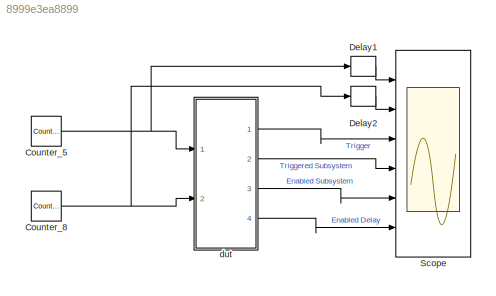
MODEL slx_8999e3ea8899
KIND model
CONFIG AbsTol = auto
CONFIG FixedStep = auto
CONFIG MaxStep = auto
CONFIG MinStep = auto
CONFIG RelTol = 1e-3
CONFIG SampleTimeConstraint = Unconstrained
CONFIG Solver = FixedStepDiscrete
CONFIG SolverMode = SingleTasking
CONFIG SolverName = FixedStepDiscrete
CONFIG StartTime = 0.0
CONFIG StopTime = 20
BLOCK [Reference] Counter_5  REF=simulink/Sources/Counter
Limited
  Ports = [0, 1]
  SourceBlock = simulink/Sources/Counter\nLimited
  SourceType = Counter Limited
BLOCK [Reference] Counter_8  REF=simulink/Sources/Counter
Limited
  Ports = [0, 1]
  SourceBlock = simulink/Sources/Counter\nLimited
  SourceType = Counter Limited
BLOCK [Delay] Delay1
  DelayLength = 1
  InputPortMap = u0
  InputProcessing = Inherited
  Ports = [1, 1]
  UserDataPersistent = on
BLOCK [Delay] Delay2
  DelayLength = 1
  InputPortMap = u0
  InputProcessing = Inherited
  Ports = [1, 1]
  UserDataPersistent = on
BLOCK [Scope] Scope
  NumInputPorts = 6
  Ports = [6]
  ScopeSpecificationString = Simulink.scopes.TimeScopeBlockCfg('CurrentConfiguration', extmgr.ConfigurationSet(extmgr.Configuration('Core','General UI',true,'FigureColor',[0.501960784313725 0.501960784313725 0.501960784313725]),extmgr.Configuration('Core','Source UI',true),extmgr.Configuration('Sources','WiredSimulink',true,'DataLoggingSaveFormat','StructureWithTime','DataLoggingLimitDataPoints',true,'DataLoggingDecimation','...<+10801ch>
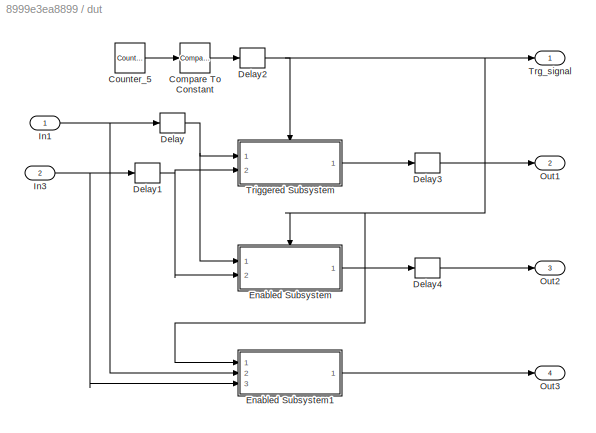
BLOCK [SubSystem] dut
  Ports = [2, 4]
  RequestExecContextInheritance = off
  Variant = off
BLOCK [Reference] dut/Compare To Constant  REF=simulink/Logic and Bit
Operations/Compare
To Constant
  Ports = [1, 1]
  SourceBlock = simulink/Logic and Bit\nOperations/Compare\nTo Constant
  SourceType = Compare To Constant
BLOCK [Reference] dut/Counter_5  REF=simulink/Sources/Counter
Limited
  Ports = [0, 1]
  SourceBlock = simulink/Sources/Counter\nLimited
  SourceType = Counter Limited
BLOCK [Delay] dut/Delay
  DelayLength = 1
  InputPortMap = u0
  InputProcessing = Inherited
  Ports = [1, 1]
  UserDataPersistent = on
BLOCK [Delay] dut/Delay1
  DelayLength = 1
  InputPortMap = u0
  InputProcessing = Inherited
  Ports = [1, 1]
  UserDataPersistent = on
BLOCK [Delay] dut/Delay2
  DelayLength = 1
  InputPortMap = u0
  InputProcessing = Inherited
  Ports = [1, 1]
  UserDataPersistent = on
BLOCK [Delay] dut/Delay3
  DelayLength = 1
  InputPortMap = u0
  InputProcessing = Inherited
  Ports = [1, 1]
  UserDataPersistent = on
BLOCK [Delay] dut/Delay4
  DelayLength = 1
  InputPortMap = u0
  InputProcessing = Inherited
  Ports = [1, 1]
  UserDataPersistent = on
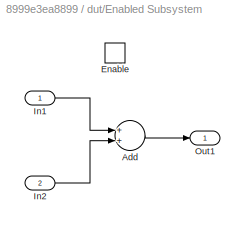
BLOCK [SubSystem] dut/Enabled Subsystem
  Ports = [2, 1, 1]
  RequestExecContextInheritance = off
  TreatAsAtomicUnit = on
  Variant = off
BLOCK [Sum] dut/Enabled Subsystem/Add
  InputSameDT = off
  OutDataTypeStr = Inherit: Inherit via internal rule
  Ports = [2, 1]
  SaturateOnIntegerOverflow = off
BLOCK [EnablePort] dut/Enabled Subsystem/Enable
  Ports = []
BLOCK [Inport] dut/Enabled Subsystem/In1
  IconDisplay = Port number
BLOCK [Inport] dut/Enabled Subsystem/In2
  IconDisplay = Port number
  Port = 2
BLOCK [Outport] dut/Enabled Subsystem/Out1
  IconDisplay = Port number
  InitialOutput = 0
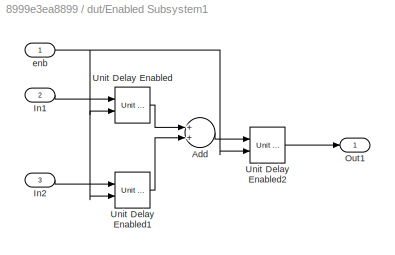
BLOCK [SubSystem] dut/Enabled Subsystem1
  Ports = [3, 1]
  RequestExecContextInheritance = off
  TreatAsAtomicUnit = on
  Variant = off
BLOCK [Sum] dut/Enabled Subsystem1/Add
  InputSameDT = off
  OutDataTypeStr = Inherit: Inherit via internal rule
  Ports = [2, 1]
  SaturateOnIntegerOverflow = off
BLOCK [Inport] dut/Enabled Subsystem1/In1
  IconDisplay = Port number
  Port = 2
BLOCK [Inport] dut/Enabled Subsystem1/In2
  IconDisplay = Port number
  Port = 3
BLOCK [Outport] dut/Enabled Subsystem1/Out1
  IconDisplay = Port number
  InitialOutput = 0
BLOCK [Reference] dut/Enabled Subsystem1/Unit Delay Enabled  REF=simulink/Additional Math
& Discrete/Additional
Discrete/Unit Delay
Enabled
  Ports = [2, 1]
  SourceBlock = simulink/Additional Math\n& Discrete/Additional\nDiscrete/Unit Delay\nEnabled
  SourceType = Unit Delay Enabled
BLOCK [Reference] dut/Enabled Subsystem1/Unit Delay Enabled1  REF=simulink/Additional Math
& Discrete/Additional
Discrete/Unit Delay
Enabled
  Ports = [2, 1]
  SourceBlock = simulink/Additional Math\n& Discrete/Additional\nDiscrete/Unit Delay\nEnabled
  SourceType = Unit Delay Enabled
BLOCK [Reference] dut/Enabled Subsystem1/Unit Delay Enabled2  REF=simulink/Additional Math
& Discrete/Additional
Discrete/Unit Delay
Enabled
  Ports = [2, 1]
  SourceBlock = simulink/Additional Math\n& Discrete/Additional\nDiscrete/Unit Delay\nEnabled
  SourceType = Unit Delay Enabled
BLOCK [Inport] dut/Enabled Subsystem1/enb
  IconDisplay = Port number
BLOCK [Inport] dut/In1
  IconDisplay = Port number
BLOCK [Inport] dut/In3
  IconDisplay = Port number
  Port = 2
BLOCK [Outport] dut/Out1
  IconDisplay = Port number
  Port = 2
BLOCK [Outport] dut/Out2
  IconDisplay = Port number
  Port = 3
BLOCK [Outport] dut/Out3
  IconDisplay = Port number
  Port = 4
BLOCK [Outport] dut/Trg_signal
  IconDisplay = Port number
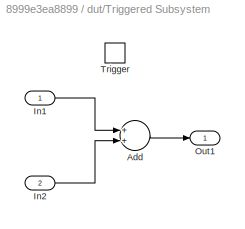
BLOCK [SubSystem] dut/Triggered Subsystem
  Ports = [2, 1, 0, 1]
  RequestExecContextInheritance = off
  TreatAsAtomicUnit = on
  Variant = off
BLOCK [Sum] dut/Triggered Subsystem/Add
  InputSameDT = off
  OutDataTypeStr = Inherit: Inherit via internal rule
  Ports = [2, 1]
  SaturateOnIntegerOverflow = off
BLOCK [Inport] dut/Triggered Subsystem/In1
  IconDisplay = Port number
BLOCK [Inport] dut/Triggered Subsystem/In2
  IconDisplay = Port number
  Port = 2
BLOCK [Outport] dut/Triggered Subsystem/Out1
  IconDisplay = Port number
  InitialOutput = 0
BLOCK [TriggerPort] dut/Triggered Subsystem/Trigger
  Ports = []
  StatesWhenEnabling = held
NET Counter_5:1 -> Delay1:1, dut:1
NET Counter_8:1 -> Delay2:1, dut:2
LINE Delay1:1 -> Scope:1
LINE Delay2:1 -> Scope:2
LINE dut/Compare To Constant:1 -> dut/Delay2:1
LINE dut/Counter_5:1 -> dut/Compare To Constant:1
NET dut/Delay1:1 -> dut/Enabled Subsystem:2, dut/Triggered Subsystem:2
NET dut/Delay2:1 -> dut/Enabled Subsystem1:1, dut/Enabled Subsystem:enable, dut/Trg_signal:1, dut/Triggered Subsystem:trigger
LINE dut/Delay3:1 -> dut/Out1:1
LINE dut/Delay4:1 -> dut/Out2:1
NET dut/Delay:1 -> dut/Enabled Subsystem:1, dut/Triggered Subsystem:1
LINE dut/Enabled Subsystem/Add:1 -> dut/Enabled Subsystem/Out1:1
LINE dut/Enabled Subsystem/In1:1 -> dut/Enabled Subsystem/Add:1
LINE dut/Enabled Subsystem/In2:1 -> dut/Enabled Subsystem/Add:2
LINE dut/Enabled Subsystem1/Add:1 -> dut/Enabled Subsystem1/Unit Delay Enabled2:1
LINE dut/Enabled Subsystem1/In1:1 -> dut/Enabled Subsystem1/Unit Delay Enabled:1
LINE dut/Enabled Subsystem1/In2:1 -> dut/Enabled Subsystem1/Unit Delay Enabled1:1
LINE dut/Enabled Subsystem1/Unit Delay Enabled1:1 -> dut/Enabled Subsystem1/Add:2
LINE dut/Enabled Subsystem1/Unit Delay Enabled2:1 -> dut/Enabled Subsystem1/Out1:1
LINE dut/Enabled Subsystem1/Unit Delay Enabled:1 -> dut/Enabled Subsystem1/Add:1
NET dut/Enabled Subsystem1/enb:1 -> dut/Enabled Subsystem1/Unit Delay Enabled1:2, dut/Enabled Subsystem1/Unit Delay Enabled2:2, dut/Enabled Subsystem1/Unit Delay Enabled:2
LINE dut/Enabled Subsystem1:1 -> dut/Out3:1
LINE dut/Enabled Subsystem:1 -> dut/Delay4:1
NET dut/In1:1 -> dut/Delay:1, dut/Enabled Subsystem1:2
NET dut/In3:1 -> dut/Delay1:1, dut/Enabled Subsystem1:3
LINE dut/Triggered Subsystem/Add:1 -> dut/Triggered Subsystem/Out1:1
LINE dut/Triggered Subsystem/In1:1 -> dut/Triggered Subsystem/Add:1
LINE dut/Triggered Subsystem/In2:1 -> dut/Triggered Subsystem/Add:2
LINE dut/Triggered Subsystem:1 -> dut/Delay3:1
LINE dut:1 -> Scope:3
LINE dut:2 -> Scope:4
LINE dut:3 -> Scope:5
LINE dut:4 -> Scope:6
note: NET lines group one-source signal fan-out (src -> all destinations, sorted); 1:1 wires keep LINE
